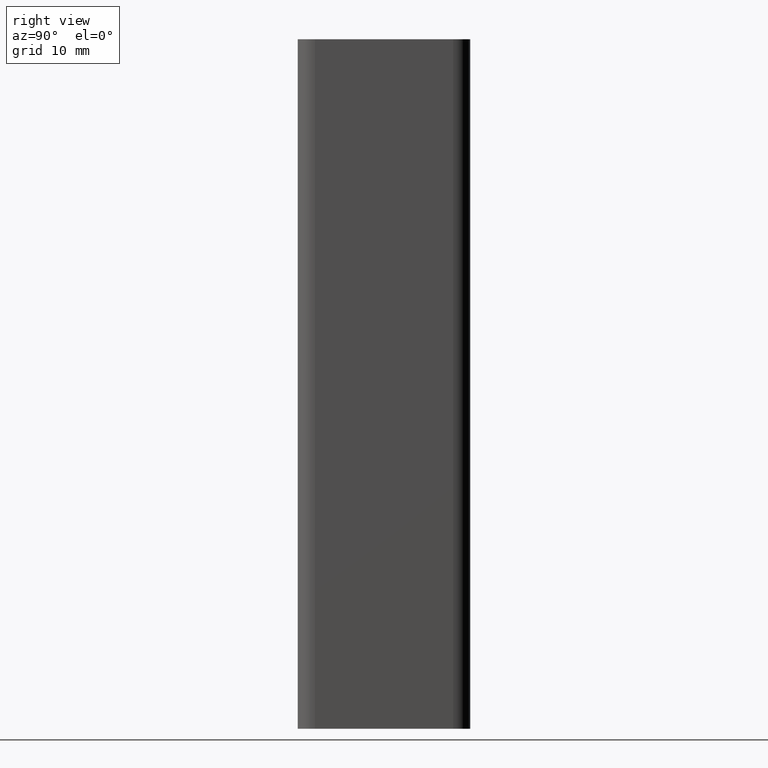
[diagram: clean part render]
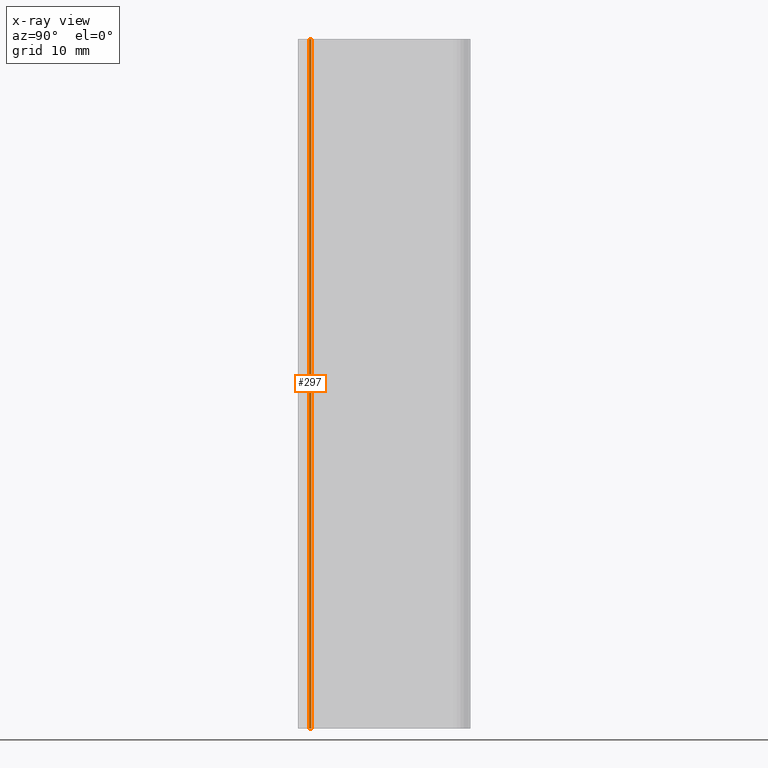
[diagram: x-ray — body ghosted, one internal face saturated and labeled with its STEP entity id]
A machine part, right view, then the same camera in x-ray: the body is ghosted and one INTERNAL B-rep face — a face not visible from any outside direction — is saturated and labeled: STEP entity #297.
In plain terms, the highlighted planar face has unit normal (-1, 0, 0).
Its self-contained STEP definition (entity closure, byte-faithful):
#258=CARTESIAN_POINT('',(-6.349999999999909,-10.549999999999898,0.0));
#259=DIRECTION('',(-1.0,0.0,0.0));
#260=DIRECTION('',(0.0,-1.0,0.0));
#261=AXIS2_PLACEMENT_3D('',#258,#259,#260);
#262=PLANE('',#261);
#263=CARTESIAN_POINT('',(-6.349999999999909,-10.549999999999898,0.0));
#264=VERTEX_POINT('',#263);
#265=CARTESIAN_POINT('',(-6.349999999999909,-10.849999999999909,0.0));
#266=VERTEX_POINT('',#265);
#267=CARTESIAN_POINT('',(-6.349999999999909,-10.549999999999898,0.0));
#268=DIRECTION('',(0.0,-1.0,0.0));
#269=VECTOR('',#268,0.300000000000011);
#270=LINE('',#267,#269);
#271=EDGE_CURVE('',#264,#266,#270,.T.);
#272=ORIENTED_EDGE('',*,*,#271,.T.);
#273=CARTESIAN_POINT('',(-6.349999999999909,-10.849999999999909,100.0));
#274=VERTEX_POINT('',#273);
#275=CARTESIAN_POINT('',(-6.349999999999909,-10.849999999999909,0.0));
#276=DIRECTION('',(0.0,0.0,1.0));
#277=VECTOR('',#276,100.0);
#278=LINE('',#275,#277);
#279=EDGE_CURVE('',#266,#274,#278,.T.);
#280=ORIENTED_EDGE('',*,*,#279,.T.);
#281=CARTESIAN_POINT('',(-6.349999999999909,-10.549999999999898,100.0));
#282=VERTEX_POINT('',#281);
#283=CARTESIAN_POINT('',(-6.349999999999909,-10.549999999999898,100.0));
#284=DIRECTION('',(0.0,-1.0,0.0));
#285=VECTOR('',#284,0.300000000000011);
#286=LINE('',#283,#285);
#287=EDGE_CURVE('',#282,#274,#286,.T.);
#288=ORIENTED_EDGE('',*,*,#287,.F.);
#289=CARTESIAN_POINT('',(-6.349999999999909,-10.549999999999898,0.0));
#290=DIRECTION('',(0.0,0.0,1.0));
#291=VECTOR('',#290,100.0);
#292=LINE('',#289,#291);
#293=EDGE_CURVE('',#264,#282,#292,.T.);
#294=ORIENTED_EDGE('',*,*,#293,.F.);
#295=EDGE_LOOP('',(#272,#280,#288,#294));
#296=FACE_OUTER_BOUND('',#295,.T.);
#297=ADVANCED_FACE('',(#296),#262,.T.);